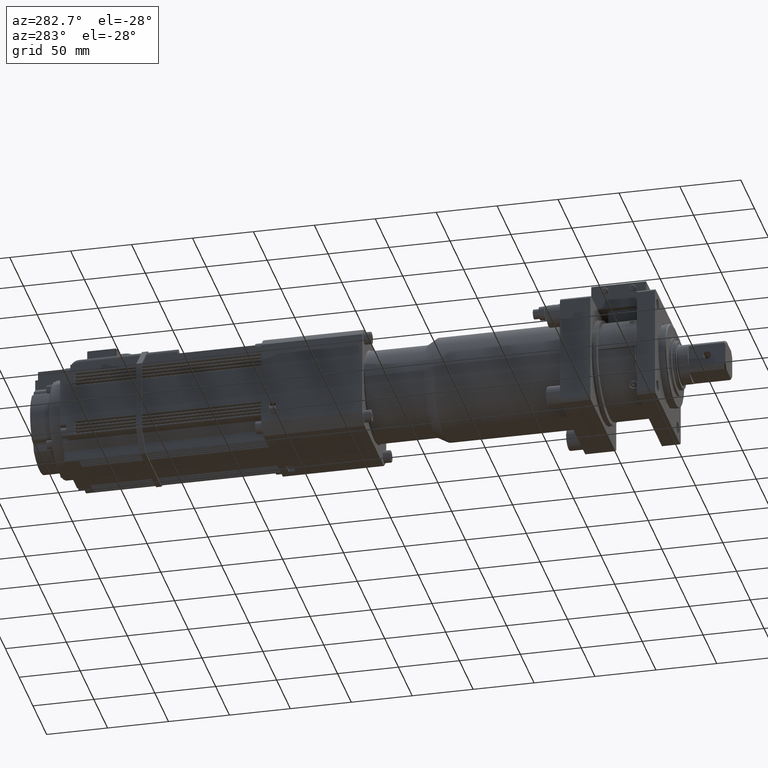
[diagram: clean part render]
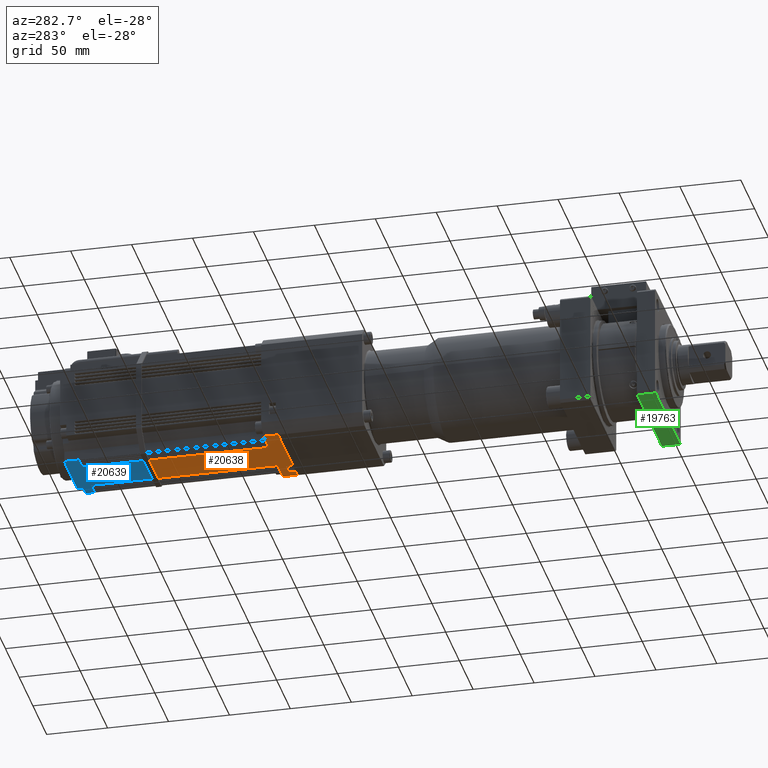
[diagram: same view with three faces highlighted in distinct colors, each labeled with its STEP entity id]
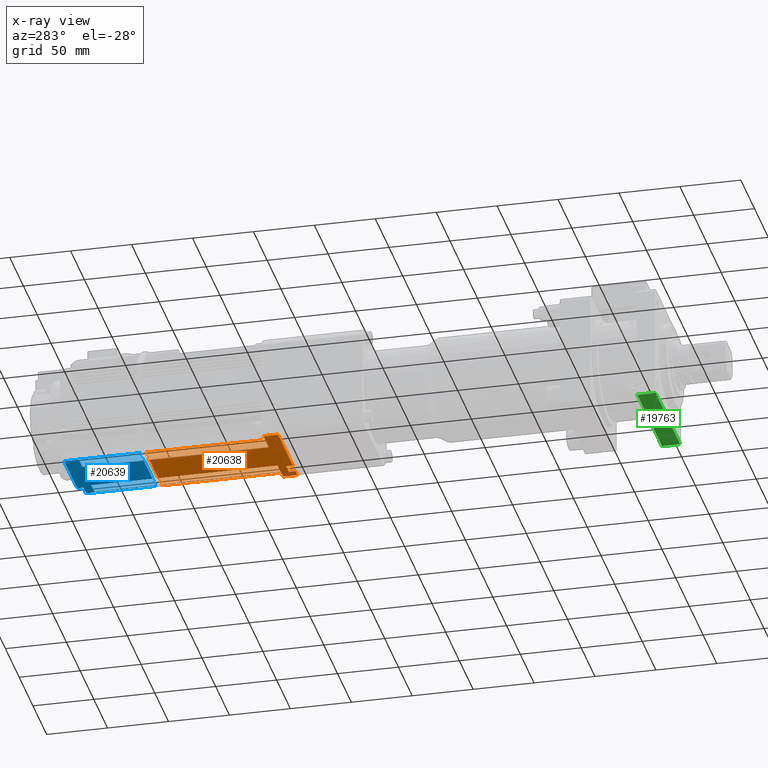
[diagram: x-ray of the same camera — body ghosted, the three highlighted faces saturated]
A machine part, auxiliary view with three faces highlighted in distinct colors.
The next image is the same camera in x-ray (body ghosted, the three faces saturated) — at least one of them is partly hidden behind the body in this view.
Their STEP definitions:

[orange] entity #20638 — the highlighted planar face has unit normal (0, -0, -1).
#1076=PLANE('',#22677);
#2392=FACE_OUTER_BOUND('',#3622,.T.);
#3622=EDGE_LOOP('',(#18630,#18631,#18632,#18633,#18634,#18635,#18636,#18637,
#18638,#18639,#18640,#18641,#18642,#18643,#18644,#18645,#18646,#18647,#18648,
#18649,#18650,#18651,#18652,#18653,#18654,#18655,#18656,#18657,#18658,#18659,
#18660,#18661,#18662,#18663,#18664,#18665,#18666,#18667,#18668,#18669,#18670,
#18671,#18672,#18673));
#4858=LINE('',#30667,#6651);
#4860=LINE('',#30670,#6653);
#5238=LINE('',#33608,#7031);
#5239=LINE('',#33613,#7032);
#5357=LINE('',#33967,#7150);
#5818=LINE('',#35435,#7611);
#5828=LINE('',#35464,#7621);
#5838=LINE('',#35493,#7631);
#5848=LINE('',#35522,#7641);
#5858=LINE('',#35551,#7651);
#5868=LINE('',#35580,#7661);
#5878=LINE('',#35609,#7671);
#5888=LINE('',#35638,#7681);
#5977=LINE('',#35894,#7770);
#5979=LINE('',#35899,#7772);
#5985=LINE('',#35910,#7778);
#5987=LINE('',#35915,#7780);
#5993=LINE('',#35926,#7786);
#5995=LINE('',#35931,#7788);
#6001=LINE('',#35942,#7794);
#6003=LINE('',#35947,#7796);
#6009=LINE('',#35958,#7802);
#6011=LINE('',#35963,#7804);
#6017=LINE('',#35974,#7810);
#6019=LINE('',#35979,#7812);
#6025=LINE('',#35990,#7818);
#6027=LINE('',#35995,#7820);
#6033=LINE('',#36006,#7826);
#6035=LINE('',#36011,#7828);
#6136=LINE('',#36230,#7929);
#6138=LINE('',#36237,#7931);
#6141=LINE('',#36242,#7934);
#6234=LINE('',#36443,#8027);
#6235=LINE('',#36444,#8028);
#6236=LINE('',#36445,#8029);
#6237=LINE('',#36446,#8030);
#6238=LINE('',#36447,#8031);
#6239=LINE('',#36448,#8032);
#6240=LINE('',#36449,#8033);
#6241=LINE('',#36450,#8034);
#6242=LINE('',#36451,#8035);
#6243=LINE('',#36453,#8036);
#6244=LINE('',#36455,#8037);
#6245=LINE('',#36456,#8038);
#6651=VECTOR('',#23940,10.);
#6653=VECTOR('',#23942,10.);
#7031=VECTOR('',#25598,10.);
#7032=VECTOR('',#25603,10.);
#7150=VECTOR('',#25911,10.);
#7611=VECTOR('',#27364,10.);
#7621=VECTOR('',#27388,10.);
#7631=VECTOR('',#27412,10.);
#7641=VECTOR('',#27436,10.);
#7651=VECTOR('',#27460,10.);
#7661=VECTOR('',#27484,10.);
#7671=VECTOR('',#27508,10.);
#7681=VECTOR('',#27532,10.);
#7770=VECTOR('',#27747,10.);
#7772=VECTOR('',#27753,10.);
#7778=VECTOR('',#27763,10.);
#7780=VECTOR('',#27769,10.);
#7786=VECTOR('',#27779,10.);
#7788=VECTOR('',#27785,10.);
#7794=VECTOR('',#27795,10.);
#7796=VECTOR('',#27801,10.);
#7802=VECTOR('',#27811,10.);
#7804=VECTOR('',#27817,10.);
#7810=VECTOR('',#27827,10.);
#7812=VECTOR('',#27833,10.);
#7818=VECTOR('',#27843,10.);
#7820=VECTOR('',#27849,10.);
#7826=VECTOR('',#27859,10.);
#7828=VECTOR('',#27865,10.);
#7929=VECTOR('',#28082,10.);
#7931=VECTOR('',#28090,10.);
#7934=VECTOR('',#28097,10.);
#8027=VECTOR('',#28294,10.);
#8028=VECTOR('',#28295,10.);
#8029=VECTOR('',#28296,10.);
#8030=VECTOR('',#28297,10.);
#8031=VECTOR('',#28298,10.);
#8032=VECTOR('',#28299,10.);
#8033=VECTOR('',#28300,10.);
#8034=VECTOR('',#28301,10.);
#8035=VECTOR('',#28302,10.);
#8036=VECTOR('',#28303,10.);
#8037=VECTOR('',#28304,10.);
#8038=VECTOR('',#28305,10.);
#8610=VERTEX_POINT('',#30650);
#8614=VERTEX_POINT('',#30662);
#8615=VERTEX_POINT('',#30666);
#8616=VERTEX_POINT('',#30668);
#9183=VERTEX_POINT('',#33604);
#9186=VERTEX_POINT('',#33611);
#9315=VERTEX_POINT('',#33964);
#9316=VERTEX_POINT('',#33966);
#9763=VERTEX_POINT('',#35433);
#9764=VERTEX_POINT('',#35434);
#9775=VERTEX_POINT('',#35462);
#9776=VERTEX_POINT('',#35463);
#9787=VERTEX_POINT('',#35491);
#9788=VERTEX_POINT('',#35492);
#9799=VERTEX_POINT('',#35520);
#9800=VERTEX_POINT('',#35521);
#9811=VERTEX_POINT('',#35549);
#9812=VERTEX_POINT('',#35550);
#9823=VERTEX_POINT('',#35578);
#9824=VERTEX_POINT('',#35579);
#9835=VERTEX_POINT('',#35607);
#9836=VERTEX_POINT('',#35608);
#9847=VERTEX_POINT('',#35636);
#9848=VERTEX_POINT('',#35637);
#9952=VERTEX_POINT('',#35892);
#9953=VERTEX_POINT('',#35898);
#9956=VERTEX_POINT('',#35908);
#9957=VERTEX_POINT('',#35914);
#9960=VERTEX_POINT('',#35924);
#9961=VERTEX_POINT('',#35930);
#9964=VERTEX_POINT('',#35940);
#9965=VERTEX_POINT('',#35946);
#9968=VERTEX_POINT('',#35956);
#9969=VERTEX_POINT('',#35962);
#9972=VERTEX_POINT('',#35972);
#9973=VERTEX_POINT('',#35978);
#9976=VERTEX_POINT('',#35988);
#9977=VERTEX_POINT('',#35994);
#9980=VERTEX_POINT('',#36004);
#9981=VERTEX_POINT('',#36010);
#10039=VERTEX_POINT('',#36226);
#10041=VERTEX_POINT('',#36229);
#10100=VERTEX_POINT('',#36452);
#10101=VERTEX_POINT('',#36454);
#10769=EDGE_CURVE('',#8615,#8614,#4858,.T.);
#10771=EDGE_CURVE('',#8610,#8616,#4860,.T.);
#11647=EDGE_CURVE('',#8610,#9183,#5238,.T.);
#11649=EDGE_CURVE('',#8614,#9186,#5239,.T.);
#11820=EDGE_CURVE('',#9316,#9315,#5357,.T.);
#12517=EDGE_CURVE('',#9763,#9764,#5818,.T.);
#12531=EDGE_CURVE('',#9775,#9776,#5828,.T.);
#12545=EDGE_CURVE('',#9787,#9788,#5838,.T.);
#12559=EDGE_CURVE('',#9799,#9800,#5848,.T.);
#12573=EDGE_CURVE('',#9811,#9812,#5858,.T.);
#12587=EDGE_CURVE('',#9823,#9824,#5868,.T.);
#12601=EDGE_CURVE('',#9835,#9836,#5878,.T.);
#12615=EDGE_CURVE('',#9847,#9848,#5888,.T.);
#12740=EDGE_CURVE('',#9952,#9788,#5977,.T.);
#12742=EDGE_CURVE('',#9787,#9953,#5979,.T.);
#12748=EDGE_CURVE('',#9956,#9836,#5985,.T.);
#12750=EDGE_CURVE('',#9835,#9957,#5987,.T.);
#12756=EDGE_CURVE('',#9960,#9824,#5993,.T.);
#12758=EDGE_CURVE('',#9823,#9961,#5995,.T.);
#12764=EDGE_CURVE('',#9964,#9776,#6001,.T.);
#12766=EDGE_CURVE('',#9775,#9965,#6003,.T.);
#12772=EDGE_CURVE('',#9968,#9800,#6009,.T.);
#12774=EDGE_CURVE('',#9799,#9969,#6011,.T.);
#12780=EDGE_CURVE('',#9972,#9848,#6017,.T.);
#12782=EDGE_CURVE('',#9847,#9973,#6019,.T.);
#12788=EDGE_CURVE('',#9976,#9812,#6025,.T.);
#12790=EDGE_CURVE('',#9811,#9977,#6027,.T.);
#12796=EDGE_CURVE('',#9980,#9764,#6033,.T.);
#12798=EDGE_CURVE('',#9763,#9981,#6035,.T.);
#12906=EDGE_CURVE('',#10041,#10039,#6136,.T.);
#12910=EDGE_CURVE('',#10039,#8615,#6138,.T.);
#12913=EDGE_CURVE('',#8616,#10041,#6141,.T.);
#13019=EDGE_CURVE('',#9980,#9977,#6234,.T.);
#13020=EDGE_CURVE('',#9976,#9973,#6235,.T.);
#13021=EDGE_CURVE('',#9972,#9969,#6236,.T.);
#13022=EDGE_CURVE('',#9968,#9965,#6237,.T.);
#13023=EDGE_CURVE('',#9964,#9961,#6238,.T.);
#13024=EDGE_CURVE('',#9960,#9957,#6239,.T.);
#13025=EDGE_CURVE('',#9956,#9953,#6240,.T.);
#13026=EDGE_CURVE('',#9952,#9316,#6241,.T.);
#13027=EDGE_CURVE('',#9315,#9183,#6242,.T.);
#13028=EDGE_CURVE('',#9186,#10100,#6243,.T.);
#13029=EDGE_CURVE('',#10100,#10101,#6244,.T.);
#13030=EDGE_CURVE('',#10101,#9981,#6245,.T.);
#18630=ORIENTED_EDGE('',*,*,#13019,.T.);
#18631=ORIENTED_EDGE('',*,*,#12790,.F.);
#18632=ORIENTED_EDGE('',*,*,#12573,.T.);
#18633=ORIENTED_EDGE('',*,*,#12788,.F.);
#18634=ORIENTED_EDGE('',*,*,#13020,.T.);
#18635=ORIENTED_EDGE('',*,*,#12782,.F.);
#18636=ORIENTED_EDGE('',*,*,#12615,.T.);
#18637=ORIENTED_EDGE('',*,*,#12780,.F.);
#18638=ORIENTED_EDGE('',*,*,#13021,.T.);
#18639=ORIENTED_EDGE('',*,*,#12774,.F.);
#18640=ORIENTED_EDGE('',*,*,#12559,.T.);
#18641=ORIENTED_EDGE('',*,*,#12772,.F.);
#18642=ORIENTED_EDGE('',*,*,#13022,.T.);
#18643=ORIENTED_EDGE('',*,*,#12766,.F.);
#18644=ORIENTED_EDGE('',*,*,#12531,.T.);
#18645=ORIENTED_EDGE('',*,*,#12764,.F.);
#18646=ORIENTED_EDGE('',*,*,#13023,.T.);
#18647=ORIENTED_EDGE('',*,*,#12758,.F.);
#18648=ORIENTED_EDGE('',*,*,#12587,.T.);
#18649=ORIENTED_EDGE('',*,*,#12756,.F.);
#18650=ORIENTED_EDGE('',*,*,#13024,.T.);
#18651=ORIENTED_EDGE('',*,*,#12750,.F.);
#18652=ORIENTED_EDGE('',*,*,#12601,.T.);
#18653=ORIENTED_EDGE('',*,*,#12748,.F.);
#18654=ORIENTED_EDGE('',*,*,#13025,.T.);
#18655=ORIENTED_EDGE('',*,*,#12742,.F.);
#18656=ORIENTED_EDGE('',*,*,#12545,.T.);
#18657=ORIENTED_EDGE('',*,*,#12740,.F.);
#18658=ORIENTED_EDGE('',*,*,#13026,.T.);
#18659=ORIENTED_EDGE('',*,*,#11820,.T.);
#18660=ORIENTED_EDGE('',*,*,#13027,.T.);
#18661=ORIENTED_EDGE('',*,*,#11647,.F.);
#18662=ORIENTED_EDGE('',*,*,#10771,.T.);
#18663=ORIENTED_EDGE('',*,*,#12913,.T.);
#18664=ORIENTED_EDGE('',*,*,#12906,.T.);
#18665=ORIENTED_EDGE('',*,*,#12910,.T.);
#18666=ORIENTED_EDGE('',*,*,#10769,.T.);
#18667=ORIENTED_EDGE('',*,*,#11649,.T.);
#18668=ORIENTED_EDGE('',*,*,#13028,.T.);
#18669=ORIENTED_EDGE('',*,*,#13029,.T.);
#18670=ORIENTED_EDGE('',*,*,#13030,.T.);
#18671=ORIENTED_EDGE('',*,*,#12798,.F.);
#18672=ORIENTED_EDGE('',*,*,#12517,.T.);
#18673=ORIENTED_EDGE('',*,*,#12796,.F.);
#20638=ADVANCED_FACE('',(#2392),#1076,.T.);
#22677=AXIS2_PLACEMENT_3D('',#36442,#28292,#28293);
#23940=DIRECTION('',(-1.,-3.91843420455937E-16,-1.20204062883603E-16));
#23942=DIRECTION('',(-1.,-3.91843420455937E-16,-1.20204062883603E-16));
#25598=DIRECTION('',(-3.96750887945431E-16,1.,-1.17835930746298E-16));
#25603=DIRECTION('',(-3.96750887945431E-16,1.,-1.17835930746298E-16));
#25911=DIRECTION('',(3.96750887945431E-16,-1.,1.17835930746298E-16));
#27364=DIRECTION('',(1.,9.0797037329464E-16,2.55351295663786E-15));
#27388=DIRECTION('',(1.,9.0797037329464E-16,2.55351295663786E-15));
#27412=DIRECTION('',(1.,-5.72326992872233E-16,2.55351295663786E-15));
#27436=DIRECTION('',(1.,9.0797037329464E-16,2.55351295663786E-15));
#27460=DIRECTION('',(1.,9.0797037329464E-16,2.55351295663786E-15));
#27484=DIRECTION('',(1.,9.0797037329464E-16,2.55351295663786E-15));
#27508=DIRECTION('',(1.,9.0797037329464E-16,2.55351295663786E-15));
#27532=DIRECTION('',(1.,9.0797037329464E-16,2.55351295663786E-15));
#27747=DIRECTION('',(8.93457654018494E-16,-1.,1.17835930746299E-16));
#27753=DIRECTION('',(-8.78944934742348E-16,1.,-1.17835930746299E-16));
#27763=DIRECTION('',(9.22483092570786E-16,-1.,1.178359307463E-16));
#27769=DIRECTION('',(-8.93457654018494E-16,1.,-1.17835930746299E-16));
#27779=DIRECTION('',(9.0797037329464E-16,-1.,1.178359307463E-16));
#27785=DIRECTION('',(-8.78944934742348E-16,1.,-1.17835930746299E-16));
#27795=DIRECTION('',(9.0797037329464E-16,-1.,1.178359307463E-16));
#27801=DIRECTION('',(-7.91868619085473E-16,1.,-1.17835930746299E-16));
#27811=DIRECTION('',(9.0797037329464E-16,-1.,1.178359307463E-16));
#27817=DIRECTION('',(-9.0797037329464E-16,1.,-1.178359307463E-16));
#27827=DIRECTION('',(9.0797037329464E-16,-1.,1.178359307463E-16));
#27833=DIRECTION('',(-9.0797037329464E-16,1.,-1.178359307463E-16));
#27843=DIRECTION('',(9.0797037329464E-16,-1.,1.178359307463E-16));
#27849=DIRECTION('',(-9.0797037329464E-16,1.,-1.178359307463E-16));
#27859=DIRECTION('',(9.0797037329464E-16,-1.,1.178359307463E-16));
#27865=DIRECTION('',(-7.91868619085473E-16,1.,-1.17835930746299E-16));
#28082=DIRECTION('',(-1.,-3.96750887945432E-16,-2.55351295663786E-15));
#28090=DIRECTION('',(3.96750887945431E-16,-1.,1.17835930746298E-16));
#28097=DIRECTION('',(-3.96750887945431E-16,1.,-1.17835930746298E-16));
#28292=DIRECTION('center_axis',(2.55351295663786E-15,-1.17835930746297E-16,
-1.));
#28293=DIRECTION('ref_axis',(-1.,-3.96750887945432E-16,-2.55351295663786E-15));
#28294=DIRECTION('',(1.,3.96750887945432E-16,2.55351295663786E-15));
#28295=DIRECTION('',(1.,3.96750887945432E-16,2.55351295663786E-15));
#28296=DIRECTION('',(1.,3.96750887945432E-16,2.55351295663786E-15));
#28297=DIRECTION('',(1.,3.96750887945432E-16,2.55351295663786E-15));
#28298=DIRECTION('',(1.,3.96750887945432E-16,2.55351295663786E-15));
#28299=DIRECTION('',(1.,3.96750887945432E-16,2.55351295663786E-15));
#28300=DIRECTION('',(1.,3.96750887945432E-16,2.55351295663786E-15));
#28301=DIRECTION('',(1.,3.96750887945432E-16,2.55351295663786E-15));
#28302=DIRECTION('',(1.,3.96750887945432E-16,2.55351295663786E-15));
#28303=DIRECTION('',(1.,3.96750887945432E-16,2.55351295663786E-15));
#28304=DIRECTION('',(-3.96750887945431E-16,1.,-1.17835930746298E-16));
#28305=DIRECTION('',(1.,3.96750887945432E-16,2.55351295663786E-15));
#30650=CARTESIAN_POINT('',(35.2668399491646,312.,-43.5));
#30662=CARTESIAN_POINT('',(-35.2668399491648,312.,-43.5));
#30666=CARTESIAN_POINT('',(18.5000000000001,312.,-43.5));
#30667=CARTESIAN_POINT('',(21.7499999999999,312.,-43.5));
#30668=CARTESIAN_POINT('',(28.5000000000001,312.,-43.5));
#30670=CARTESIAN_POINT('',(21.7499999999999,312.,-43.5));
#33604=CARTESIAN_POINT('',(35.2668399491648,324.,-43.4999999999999));
#33608=CARTESIAN_POINT('',(35.2668399491648,312.,-43.4999999999999));
#33611=CARTESIAN_POINT('',(-35.2668399491646,324.,-43.5000000000001));
#33613=CARTESIAN_POINT('',(-35.2668399491646,312.,-43.5000000000001));
#33964=CARTESIAN_POINT('',(28.5000000000001,324.,-43.5));
#33966=CARTESIAN_POINT('',(28.5000000000001,422.,-43.5));
#33967=CARTESIAN_POINT('',(28.5000000000001,400.5,-43.5));
#35433=CARTESIAN_POINT('',(-27.5999999999999,324.,-43.5000000000001));
#35434=CARTESIAN_POINT('',(-24.8999999999999,324.,-43.5000000000001));
#35435=CARTESIAN_POINT('',(4.13341997458246,324.,-43.5));
#35462=CARTESIAN_POINT('',(15.9000000000001,324.,-43.5));
#35463=CARTESIAN_POINT('',(18.6000000000001,324.,-43.5));
#35464=CARTESIAN_POINT('',(25.8834199745825,324.,-43.5));
#35491=CARTESIAN_POINT('',(24.9000000000001,324.,-43.5));
#35492=CARTESIAN_POINT('',(27.6000000000001,324.,-43.5));
#35493=CARTESIAN_POINT('',(30.3834199745825,324.,-43.5));
#35520=CARTESIAN_POINT('',(-18.5999999999999,324.,-43.5000000000001));
#35521=CARTESIAN_POINT('',(-15.8999999999999,324.,-43.5000000000001));
#35522=CARTESIAN_POINT('',(8.63341997458245,324.,-43.5));
#35549=CARTESIAN_POINT('',(-24.5999999999999,324.,-43.5000000000001));
#35550=CARTESIAN_POINT('',(-21.8999999999999,324.,-43.5000000000001));
#35551=CARTESIAN_POINT('',(5.63341997458245,324.,-43.5));
#35578=CARTESIAN_POINT('',(18.9000000000001,324.,-43.5));
#35579=CARTESIAN_POINT('',(21.6000000000001,324.,-43.5));
#35580=CARTESIAN_POINT('',(27.3834199745824,324.,-43.5));
#35607=CARTESIAN_POINT('',(21.9000000000001,324.,-43.5));
#35608=CARTESIAN_POINT('',(24.6000000000001,324.,-43.5));
#35609=CARTESIAN_POINT('',(28.8834199745825,324.,-43.5));
#35636=CARTESIAN_POINT('',(-21.5999999999999,324.,-43.5000000000001));
#35637=CARTESIAN_POINT('',(-18.8999999999998,324.,-43.5000000000001));
#35638=CARTESIAN_POINT('',(7.13341997458248,324.,-43.5));
#35892=CARTESIAN_POINT('',(27.6,422.,-43.5));
#35894=CARTESIAN_POINT('',(27.6000000000001,318.,-43.5));
#35898=CARTESIAN_POINT('',(24.9,422.,-43.5));
#35899=CARTESIAN_POINT('',(24.9000000000001,394.5,-43.5));
#35908=CARTESIAN_POINT('',(24.6,422.,-43.5));
#35910=CARTESIAN_POINT('',(24.6000000000001,318.,-43.5));
#35914=CARTESIAN_POINT('',(21.9,422.,-43.5));
#35915=CARTESIAN_POINT('',(21.9000000000001,394.5,-43.5));
#35924=CARTESIAN_POINT('',(21.6,422.,-43.5));
#35926=CARTESIAN_POINT('',(21.6000000000001,318.,-43.5));
#35930=CARTESIAN_POINT('',(18.9,422.,-43.5));
#35931=CARTESIAN_POINT('',(18.9,394.5,-43.5));
#35940=CARTESIAN_POINT('',(18.6,422.,-43.5));
#35942=CARTESIAN_POINT('',(18.6000000000001,318.,-43.5));
#35946=CARTESIAN_POINT('',(15.9,422.,-43.5));
#35947=CARTESIAN_POINT('',(15.9000000000001,394.5,-43.5));
#35956=CARTESIAN_POINT('',(-15.9,422.,-43.5000000000001));
#35958=CARTESIAN_POINT('',(-15.8999999999999,318.,-43.5000000000001));
#35962=CARTESIAN_POINT('',(-18.6,422.,-43.5000000000001));
#35963=CARTESIAN_POINT('',(-18.6,394.5,-43.5000000000001));
#35972=CARTESIAN_POINT('',(-18.8999999999999,422.,-43.5000000000001));
#35974=CARTESIAN_POINT('',(-18.8999999999998,318.,-43.5000000000001));
#35978=CARTESIAN_POINT('',(-21.5999999999999,422.,-43.5000000000001));
#35979=CARTESIAN_POINT('',(-21.5999999999999,394.5,-43.5000000000001));
#35988=CARTESIAN_POINT('',(-21.9,422.,-43.5000000000001));
#35990=CARTESIAN_POINT('',(-21.8999999999999,318.,-43.5000000000001));
#35994=CARTESIAN_POINT('',(-24.6,422.,-43.5000000000001));
#35995=CARTESIAN_POINT('',(-24.6,394.5,-43.5000000000001));
#36004=CARTESIAN_POINT('',(-24.9,422.,-43.5000000000001));
#36006=CARTESIAN_POINT('',(-24.8999999999999,318.,-43.5000000000001));
#36010=CARTESIAN_POINT('',(-27.6,422.,-43.5000000000001));
#36011=CARTESIAN_POINT('',(-27.6,394.5,-43.5000000000001));
#36226=CARTESIAN_POINT('',(18.5000000000001,317.5,-43.5));
#36229=CARTESIAN_POINT('',(28.5000000000001,317.5,-43.5));
#36230=CARTESIAN_POINT('',(29.3834199745825,317.5,-43.5));
#36237=CARTESIAN_POINT('',(18.5000000000001,312.,-43.5));
#36242=CARTESIAN_POINT('',(28.5000000000001,312.,-43.5));
#36442=CARTESIAN_POINT('Origin',(35.2668399491648,312.,-43.4999999999999));
#36443=CARTESIAN_POINT('',(17.6334199745824,422.,-43.5));
#36444=CARTESIAN_POINT('',(17.6334199745824,422.,-43.5));
#36445=CARTESIAN_POINT('',(17.6334199745824,422.,-43.5));
#36446=CARTESIAN_POINT('',(17.6334199745824,422.,-43.5));
#36447=CARTESIAN_POINT('',(17.6334199745824,422.,-43.5));
#36448=CARTESIAN_POINT('',(17.6334199745824,422.,-43.5));
#36449=CARTESIAN_POINT('',(17.6334199745824,422.,-43.5));
#36450=CARTESIAN_POINT('',(17.6334199745824,422.,-43.5));
#36451=CARTESIAN_POINT('',(35.6334199745825,324.,-43.4999999999999));
#36452=CARTESIAN_POINT('',(-28.4999999999999,324.,-43.5000000000001));
#36453=CARTESIAN_POINT('',(-0.366580025417542,324.,-43.5));
#36454=CARTESIAN_POINT('',(-28.4999999999999,422.,-43.5000000000001));
#36455=CARTESIAN_POINT('',(-28.4999999999999,400.5,-43.5000000000001));
#36456=CARTESIAN_POINT('',(17.6334199745824,422.,-43.5));

[blue] entity #20639 — the highlighted planar face has unit normal (0, -0, -1).
#1077=PLANE('',#22678);
#2393=FACE_OUTER_BOUND('',#3623,.T.);
#3623=EDGE_LOOP('',(#18674,#18675,#18676,#18677,#18678,#18679,#18680,#18681,
#18682,#18683,#18684,#18685,#18686,#18687,#18688,#18689,#18690,#18691,#18692,
#18693,#18694,#18695,#18696,#18697,#18698,#18699,#18700,#18701,#18702,#18703,
#18704,#18705,#18706,#18707,#18708,#18709,#18710,#18711));
#5330=LINE('',#33893,#7123);
#5354=LINE('',#33962,#7147);
#5378=LINE('',#34016,#7171);
#5384=LINE('',#34030,#7177);
#5821=LINE('',#35445,#7614);
#5831=LINE('',#35474,#7624);
#5841=LINE('',#35503,#7634);
#5851=LINE('',#35532,#7644);
#5861=LINE('',#35561,#7654);
#5871=LINE('',#35590,#7664);
#5881=LINE('',#35619,#7674);
#5891=LINE('',#35648,#7684);
#5975=LINE('',#35891,#7768);
#5981=LINE('',#35902,#7774);
#5983=LINE('',#35907,#7776);
#5989=LINE('',#35918,#7782);
#5991=LINE('',#35923,#7784);
#5997=LINE('',#35934,#7790);
#5999=LINE('',#35939,#7792);
#6005=LINE('',#35950,#7798);
#6007=LINE('',#35955,#7800);
#6013=LINE('',#35966,#7806);
#6015=LINE('',#35971,#7808);
#6021=LINE('',#35982,#7814);
#6023=LINE('',#35987,#7816);
#6029=LINE('',#35998,#7822);
#6031=LINE('',#36003,#7824);
#6037=LINE('',#36014,#7830);
#6246=LINE('',#36458,#8039);
#6247=LINE('',#36460,#8040);
#6248=LINE('',#36461,#8041);
#6249=LINE('',#36462,#8042);
#6250=LINE('',#36463,#8043);
#6251=LINE('',#36464,#8044);
#6252=LINE('',#36465,#8045);
#6253=LINE('',#36466,#8046);
#6254=LINE('',#36467,#8047);
#6255=LINE('',#36468,#8048);
#7123=VECTOR('',#25848,10.);
#7147=VECTOR('',#25908,10.);
#7171=VECTOR('',#25956,10.);
#7177=VECTOR('',#25972,10.);
#7614=VECTOR('',#27373,10.);
#7624=VECTOR('',#27397,10.);
#7634=VECTOR('',#27421,10.);
#7644=VECTOR('',#27445,10.);
#7654=VECTOR('',#27469,10.);
#7664=VECTOR('',#27493,10.);
#7674=VECTOR('',#27517,10.);
#7684=VECTOR('',#27541,10.);
#7768=VECTOR('',#27745,10.);
#7774=VECTOR('',#27755,10.);
#7776=VECTOR('',#27761,10.);
#7782=VECTOR('',#27771,10.);
#7784=VECTOR('',#27777,10.);
#7790=VECTOR('',#27787,10.);
#7792=VECTOR('',#27793,10.);
#7798=VECTOR('',#27803,10.);
#7800=VECTOR('',#27809,10.);
#7806=VECTOR('',#27819,10.);
#7808=VECTOR('',#27825,10.);
#7814=VECTOR('',#27835,10.);
#7816=VECTOR('',#27841,10.);
#7822=VECTOR('',#27851,10.);
#7824=VECTOR('',#27857,10.);
#7830=VECTOR('',#27867,10.);
#8039=VECTOR('',#28308,10.);
#8040=VECTOR('',#28309,10.);
#8041=VECTOR('',#28310,10.);
#8042=VECTOR('',#28311,10.);
#8043=VECTOR('',#28312,10.);
#8044=VECTOR('',#28313,10.);
#8045=VECTOR('',#28314,10.);
#8046=VECTOR('',#28315,10.);
#8047=VECTOR('',#28316,10.);
#8048=VECTOR('',#28317,10.);
#9286=VERTEX_POINT('',#33890);
#9287=VERTEX_POINT('',#33892);
#9313=VERTEX_POINT('',#33959);
#9314=VERTEX_POINT('',#33961);
#9332=VERTEX_POINT('',#34015);
#9767=VERTEX_POINT('',#35443);
#9768=VERTEX_POINT('',#35444);
#9779=VERTEX_POINT('',#35472);
#9780=VERTEX_POINT('',#35473);
#9791=VERTEX_POINT('',#35501);
#9792=VERTEX_POINT('',#35502);
#9803=VERTEX_POINT('',#35530);
#9804=VERTEX_POINT('',#35531);
#9815=VERTEX_POINT('',#35559);
#9816=VERTEX_POINT('',#35560);
#9827=VERTEX_POINT('',#35588);
#9828=VERTEX_POINT('',#35589);
#9839=VERTEX_POINT('',#35617);
#9840=VERTEX_POINT('',#35618);
#9851=VERTEX_POINT('',#35646);
#9852=VERTEX_POINT('',#35647);
#9951=VERTEX_POINT('',#35890);
#9954=VERTEX_POINT('',#35900);
#9955=VERTEX_POINT('',#35906);
#9958=VERTEX_POINT('',#35916);
#9959=VERTEX_POINT('',#35922);
#9962=VERTEX_POINT('',#35932);
#9963=VERTEX_POINT('',#35938);
#9966=VERTEX_POINT('',#35948);
#9967=VERTEX_POINT('',#35954);
#9970=VERTEX_POINT('',#35964);
#9971=VERTEX_POINT('',#35970);
#9974=VERTEX_POINT('',#35980);
#9975=VERTEX_POINT('',#35986);
#9978=VERTEX_POINT('',#35996);
#9979=VERTEX_POINT('',#36002);
#9982=VERTEX_POINT('',#36012);
#10102=VERTEX_POINT('',#36459);
#11781=EDGE_CURVE('',#9286,#9287,#5330,.T.);
#11817=EDGE_CURVE('',#9314,#9313,#5354,.T.);
#11846=EDGE_CURVE('',#9332,#9314,#5378,.T.);
#11854=EDGE_CURVE('',#9286,#9332,#5384,.T.);
#12522=EDGE_CURVE('',#9767,#9768,#5821,.T.);
#12536=EDGE_CURVE('',#9779,#9780,#5831,.T.);
#12550=EDGE_CURVE('',#9791,#9792,#5841,.T.);
#12564=EDGE_CURVE('',#9803,#9804,#5851,.T.);
#12578=EDGE_CURVE('',#9815,#9816,#5861,.T.);
#12592=EDGE_CURVE('',#9827,#9828,#5871,.T.);
#12606=EDGE_CURVE('',#9839,#9840,#5881,.T.);
#12620=EDGE_CURVE('',#9851,#9852,#5891,.T.);
#12738=EDGE_CURVE('',#9791,#9951,#5975,.T.);
#12744=EDGE_CURVE('',#9954,#9792,#5981,.T.);
#12746=EDGE_CURVE('',#9839,#9955,#5983,.T.);
#12752=EDGE_CURVE('',#9958,#9840,#5989,.T.);
#12754=EDGE_CURVE('',#9827,#9959,#5991,.T.);
#12760=EDGE_CURVE('',#9962,#9828,#5997,.T.);
#12762=EDGE_CURVE('',#9779,#9963,#5999,.T.);
#12768=EDGE_CURVE('',#9966,#9780,#6005,.T.);
#12770=EDGE_CURVE('',#9803,#9967,#6007,.T.);
#12776=EDGE_CURVE('',#9970,#9804,#6013,.T.);
#12778=EDGE_CURVE('',#9851,#9971,#6015,.T.);
#12784=EDGE_CURVE('',#9974,#9852,#6021,.T.);
#12786=EDGE_CURVE('',#9815,#9975,#6023,.T.);
#12792=EDGE_CURVE('',#9978,#9816,#6029,.T.);
#12794=EDGE_CURVE('',#9767,#9979,#6031,.T.);
#12800=EDGE_CURVE('',#9982,#9768,#6037,.T.);
#13031=EDGE_CURVE('',#9978,#9979,#6246,.T.);
#13032=EDGE_CURVE('',#9982,#10102,#6247,.T.);
#13033=EDGE_CURVE('',#10102,#9287,#6248,.T.);
#13034=EDGE_CURVE('',#9313,#9951,#6249,.T.);
#13035=EDGE_CURVE('',#9954,#9955,#6250,.T.);
#13036=EDGE_CURVE('',#9958,#9959,#6251,.T.);
#13037=EDGE_CURVE('',#9962,#9963,#6252,.T.);
#13038=EDGE_CURVE('',#9966,#9967,#6253,.T.);
#13039=EDGE_CURVE('',#9970,#9971,#6254,.T.);
#13040=EDGE_CURVE('',#9974,#9975,#6255,.T.);
#18674=ORIENTED_EDGE('',*,*,#13031,.T.);
#18675=ORIENTED_EDGE('',*,*,#12794,.F.);
#18676=ORIENTED_EDGE('',*,*,#12522,.T.);
#18677=ORIENTED_EDGE('',*,*,#12800,.F.);
#18678=ORIENTED_EDGE('',*,*,#13032,.T.);
#18679=ORIENTED_EDGE('',*,*,#13033,.T.);
#18680=ORIENTED_EDGE('',*,*,#11781,.F.);
#18681=ORIENTED_EDGE('',*,*,#11854,.T.);
#18682=ORIENTED_EDGE('',*,*,#11846,.T.);
#18683=ORIENTED_EDGE('',*,*,#11817,.T.);
#18684=ORIENTED_EDGE('',*,*,#13034,.T.);
#18685=ORIENTED_EDGE('',*,*,#12738,.F.);
#18686=ORIENTED_EDGE('',*,*,#12550,.T.);
#18687=ORIENTED_EDGE('',*,*,#12744,.F.);
#18688=ORIENTED_EDGE('',*,*,#13035,.T.);
#18689=ORIENTED_EDGE('',*,*,#12746,.F.);
#18690=ORIENTED_EDGE('',*,*,#12606,.T.);
#18691=ORIENTED_EDGE('',*,*,#12752,.F.);
#18692=ORIENTED_EDGE('',*,*,#13036,.T.);
#18693=ORIENTED_EDGE('',*,*,#12754,.F.);
#18694=ORIENTED_EDGE('',*,*,#12592,.T.);
#18695=ORIENTED_EDGE('',*,*,#12760,.F.);
#18696=ORIENTED_EDGE('',*,*,#13037,.T.);
#18697=ORIENTED_EDGE('',*,*,#12762,.F.);
#18698=ORIENTED_EDGE('',*,*,#12536,.T.);
#18699=ORIENTED_EDGE('',*,*,#12768,.F.);
#18700=ORIENTED_EDGE('',*,*,#13038,.T.);
#18701=ORIENTED_EDGE('',*,*,#12770,.F.);
#18702=ORIENTED_EDGE('',*,*,#12564,.T.);
#18703=ORIENTED_EDGE('',*,*,#12776,.F.);
#18704=ORIENTED_EDGE('',*,*,#13039,.T.);
#18705=ORIENTED_EDGE('',*,*,#12778,.F.);
#18706=ORIENTED_EDGE('',*,*,#12620,.T.);
#18707=ORIENTED_EDGE('',*,*,#12784,.F.);
#18708=ORIENTED_EDGE('',*,*,#13040,.T.);
#18709=ORIENTED_EDGE('',*,*,#12786,.F.);
#18710=ORIENTED_EDGE('',*,*,#12578,.T.);
#18711=ORIENTED_EDGE('',*,*,#12792,.F.);
#20639=ADVANCED_FACE('',(#2393),#1077,.T.);
#22678=AXIS2_PLACEMENT_3D('',#36457,#28306,#28307);
#25848=DIRECTION('',(-1.,-3.96750887945432E-16,-2.55351295663786E-15));
#25908=DIRECTION('',(3.96750887945431E-16,-1.,1.17835930746298E-16));
#25956=DIRECTION('',(1.,3.96750887945432E-16,2.55351295663786E-15));
#25972=DIRECTION('',(3.96750887945431E-16,-1.,1.17835930746298E-16));
#27373=DIRECTION('',(-1.,-9.0797037329464E-16,-2.55351295663786E-15));
#27397=DIRECTION('',(-1.,-9.0797037329464E-16,-2.55351295663786E-15));
#27421=DIRECTION('',(-1.,-9.0797037329464E-16,-2.55351295663786E-15));
#27445=DIRECTION('',(-1.,-9.0797037329464E-16,-2.55351295663786E-15));
#27469=DIRECTION('',(-1.,-9.0797037329464E-16,-2.55351295663786E-15));
#27493=DIRECTION('',(-1.,-9.0797037329464E-16,-2.55351295663786E-15));
#27517=DIRECTION('',(-1.,-9.0797037329464E-16,-2.55351295663786E-15));
#27541=DIRECTION('',(-1.,-9.0797037329464E-16,-2.55351295663786E-15));
#27745=DIRECTION('',(8.93457654018494E-16,-1.,1.17835930746299E-16));
#27755=DIRECTION('',(-8.78944934742348E-16,1.,-1.17835930746299E-16));
#27761=DIRECTION('',(9.22483092570786E-16,-1.,1.178359307463E-16));
#27771=DIRECTION('',(-8.93457654018494E-16,1.,-1.17835930746299E-16));
#27777=DIRECTION('',(9.0797037329464E-16,-1.,1.178359307463E-16));
#27787=DIRECTION('',(-8.78944934742348E-16,1.,-1.17835930746299E-16));
#27793=DIRECTION('',(9.0797037329464E-16,-1.,1.178359307463E-16));
#27803=DIRECTION('',(-7.91868619085473E-16,1.,-1.17835930746299E-16));
#27809=DIRECTION('',(9.0797037329464E-16,-1.,1.178359307463E-16));
#27819=DIRECTION('',(-9.0797037329464E-16,1.,-1.178359307463E-16));
#27825=DIRECTION('',(9.0797037329464E-16,-1.,1.178359307463E-16));
#27835=DIRECTION('',(-9.0797037329464E-16,1.,-1.178359307463E-16));
#27841=DIRECTION('',(9.0797037329464E-16,-1.,1.178359307463E-16));
#27851=DIRECTION('',(-9.0797037329464E-16,1.,-1.178359307463E-16));
#27857=DIRECTION('',(9.0797037329464E-16,-1.,1.178359307463E-16));
#27867=DIRECTION('',(-7.91868619085473E-16,1.,-1.17835930746299E-16));
#28306=DIRECTION('center_axis',(2.55351295663786E-15,-1.17835930746297E-16,
-1.));
#28307=DIRECTION('ref_axis',(-1.,-3.96750887945432E-16,-2.55351295663786E-15));
#28308=DIRECTION('',(-1.,-3.96750887945432E-16,-2.55351295663786E-15));
#28309=DIRECTION('',(-1.,-3.96750887945432E-16,-2.55351295663786E-15));
#28310=DIRECTION('',(-3.96750887945431E-16,1.,-1.17835930746298E-16));
#28311=DIRECTION('',(-1.,-3.96750887945432E-16,-2.55351295663786E-15));
#28312=DIRECTION('',(-1.,-3.96750887945432E-16,-2.55351295663786E-15));
#28313=DIRECTION('',(-1.,-3.96750887945432E-16,-2.55351295663786E-15));
#28314=DIRECTION('',(-1.,-3.96750887945432E-16,-2.55351295663786E-15));
#28315=DIRECTION('',(-1.,-3.96750887945432E-16,-2.55351295663786E-15));
#28316=DIRECTION('',(-1.,-3.96750887945432E-16,-2.55351295663786E-15));
#28317=DIRECTION('',(-1.,-3.96750887945432E-16,-2.55351295663786E-15));
#33890=CARTESIAN_POINT('',(18.5,489.,-43.5));
#33892=CARTESIAN_POINT('',(-28.5,489.,-43.5000000000001));
#33893=CARTESIAN_POINT('',(35.2668399491647,489.,-43.5));
#33959=CARTESIAN_POINT('',(28.5000000000001,426.5,-43.5));
#33961=CARTESIAN_POINT('',(28.5,484.,-43.5));
#33962=CARTESIAN_POINT('',(28.5000000000001,400.5,-43.5));
#34015=CARTESIAN_POINT('',(18.5,484.,-43.5));
#34016=CARTESIAN_POINT('',(29.7698695683692,484.,-43.5));
#34030=CARTESIAN_POINT('',(18.5000000000001,400.5,-43.5));
#35443=CARTESIAN_POINT('',(-24.9,477.,-43.5000000000001));
#35444=CARTESIAN_POINT('',(-27.6,477.,-43.5000000000001));
#35445=CARTESIAN_POINT('',(4.88341997458231,477.,-43.5));
#35472=CARTESIAN_POINT('',(18.6,477.,-43.5));
#35473=CARTESIAN_POINT('',(15.9,477.,-43.5));
#35474=CARTESIAN_POINT('',(26.6334199745823,477.,-43.5));
#35501=CARTESIAN_POINT('',(27.6,477.,-43.5));
#35502=CARTESIAN_POINT('',(24.9,477.,-43.5));
#35503=CARTESIAN_POINT('',(31.1334199745823,477.,-43.5));
#35530=CARTESIAN_POINT('',(-15.9000000000001,477.,-43.5000000000001));
#35531=CARTESIAN_POINT('',(-18.6000000000001,477.,-43.5000000000001));
#35532=CARTESIAN_POINT('',(9.38341997458231,477.,-43.5));
#35559=CARTESIAN_POINT('',(-21.9,477.,-43.5000000000001));
#35560=CARTESIAN_POINT('',(-24.6,477.,-43.5000000000001));
#35561=CARTESIAN_POINT('',(6.38341997458231,477.,-43.5));
#35588=CARTESIAN_POINT('',(21.5999999999999,477.,-43.5));
#35589=CARTESIAN_POINT('',(18.8999999999999,477.,-43.5));
#35590=CARTESIAN_POINT('',(28.1334199745823,477.,-43.5));
#35617=CARTESIAN_POINT('',(24.6,477.,-43.5));
#35618=CARTESIAN_POINT('',(21.9,477.,-43.5));
#35619=CARTESIAN_POINT('',(29.6334199745823,477.,-43.5));
#35646=CARTESIAN_POINT('',(-18.9,477.,-43.5000000000001));
#35647=CARTESIAN_POINT('',(-21.6,477.,-43.5000000000001));
#35648=CARTESIAN_POINT('',(7.88341997458234,477.,-43.5));
#35890=CARTESIAN_POINT('',(27.6,426.5,-43.5));
#35891=CARTESIAN_POINT('',(27.6000000000001,318.,-43.5));
#35900=CARTESIAN_POINT('',(24.9,426.5,-43.5));
#35902=CARTESIAN_POINT('',(24.9000000000001,394.5,-43.5));
#35906=CARTESIAN_POINT('',(24.6,426.5,-43.5));
#35907=CARTESIAN_POINT('',(24.6000000000001,318.,-43.5));
#35916=CARTESIAN_POINT('',(21.9,426.5,-43.5));
#35918=CARTESIAN_POINT('',(21.9000000000001,394.5,-43.5));
#35922=CARTESIAN_POINT('',(21.6,426.5,-43.5));
#35923=CARTESIAN_POINT('',(21.6000000000001,318.,-43.5));
#35932=CARTESIAN_POINT('',(18.9,426.5,-43.5));
#35934=CARTESIAN_POINT('',(18.9,394.5,-43.5));
#35938=CARTESIAN_POINT('',(18.6,426.5,-43.5));
#35939=CARTESIAN_POINT('',(18.6000000000001,318.,-43.5));
#35948=CARTESIAN_POINT('',(15.9,426.5,-43.5));
#35950=CARTESIAN_POINT('',(15.9000000000001,394.5,-43.5));
#35954=CARTESIAN_POINT('',(-15.9,426.5,-43.5000000000001));
#35955=CARTESIAN_POINT('',(-15.8999999999999,318.,-43.5000000000001));
#35964=CARTESIAN_POINT('',(-18.6,426.5,-43.5000000000001));
#35966=CARTESIAN_POINT('',(-18.6,394.5,-43.5000000000001));
#35970=CARTESIAN_POINT('',(-18.8999999999999,426.5,-43.5000000000001));
#35971=CARTESIAN_POINT('',(-18.8999999999998,318.,-43.5000000000001));
#35980=CARTESIAN_POINT('',(-21.5999999999999,426.5,-43.5000000000001));
#35982=CARTESIAN_POINT('',(-21.5999999999999,394.5,-43.5000000000001));
#35986=CARTESIAN_POINT('',(-21.9,426.5,-43.5000000000001));
#35987=CARTESIAN_POINT('',(-21.8999999999999,318.,-43.5000000000001));
#35996=CARTESIAN_POINT('',(-24.6,426.5,-43.5000000000001));
#35998=CARTESIAN_POINT('',(-24.6,394.5,-43.5000000000001));
#36002=CARTESIAN_POINT('',(-24.9,426.5,-43.5000000000001));
#36003=CARTESIAN_POINT('',(-24.8999999999999,318.,-43.5000000000001));
#36012=CARTESIAN_POINT('',(-27.6,426.5,-43.5000000000001));
#36014=CARTESIAN_POINT('',(-27.6,394.5,-43.5000000000001));
#36457=CARTESIAN_POINT('Origin',(35.2668399491648,312.,-43.4999999999999));
#36458=CARTESIAN_POINT('',(17.6334199745824,426.5,-43.5));
#36459=CARTESIAN_POINT('',(-28.4999999999999,426.5,-43.5000000000001));
#36460=CARTESIAN_POINT('',(17.6334199745824,426.5,-43.5));
#36461=CARTESIAN_POINT('',(-28.4999999999999,400.5,-43.5000000000001));
#36462=CARTESIAN_POINT('',(17.6334199745824,426.5,-43.5));
#36463=CARTESIAN_POINT('',(17.6334199745824,426.5,-43.5));
#36464=CARTESIAN_POINT('',(17.6334199745824,426.5,-43.5));
#36465=CARTESIAN_POINT('',(17.6334199745824,426.5,-43.5));
#36466=CARTESIAN_POINT('',(17.6334199745824,426.5,-43.5));
#36467=CARTESIAN_POINT('',(17.6334199745824,426.5,-43.5));
#36468=CARTESIAN_POINT('',(17.6334199745824,426.5,-43.5));

[green] entity #19763 — the highlighted planar face has unit normal (0, 0, 1).
#558=PLANE('',#21071);
#1517=FACE_OUTER_BOUND('',#2651,.T.);
#2651=EDGE_LOOP('',(#14062,#14063,#14064,#14065));
#4779=LINE('',#30346,#6572);
#4789=LINE('',#30391,#6582);
#4792=LINE('',#30403,#6585);
#4793=LINE('',#30404,#6586);
#6572=VECTOR('',#23587,10.);
#6582=VECTOR('',#23627,10.);
#6585=VECTOR('',#23640,10.);
#6586=VECTOR('',#23641,10.);
#8509=VERTEX_POINT('',#30343);
#8510=VERTEX_POINT('',#30345);
#8529=VERTEX_POINT('',#30388);
#8530=VERTEX_POINT('',#30390);
#10610=EDGE_CURVE('',#8509,#8510,#4779,.T.);
#10630=EDGE_CURVE('',#8529,#8530,#4789,.T.);
#10636=EDGE_CURVE('',#8510,#8529,#4792,.T.);
#10637=EDGE_CURVE('',#8530,#8509,#4793,.T.);
#14062=ORIENTED_EDGE('',*,*,#10636,.F.);
#14063=ORIENTED_EDGE('',*,*,#10610,.F.);
#14064=ORIENTED_EDGE('',*,*,#10637,.F.);
#14065=ORIENTED_EDGE('',*,*,#10630,.F.);
#19763=ADVANCED_FACE('',(#1517),#558,.F.);
#21071=AXIS2_PLACEMENT_3D('',#30402,#23638,#23639);
#23587=DIRECTION('',(-3.91843420455937E-16,1.,0.));
#23627=DIRECTION('',(3.91843420455937E-16,-1.,0.));
#23638=DIRECTION('center_axis',(0.,0.,1.));
#23639=DIRECTION('ref_axis',(1.,3.91843420455937E-16,0.));
#23640=DIRECTION('',(-1.,-3.91843420455937E-16,0.));
#23641=DIRECTION('',(1.,3.91843420455937E-16,0.));
#30343=CARTESIAN_POINT('',(44.8998886412873,3.52919871005526E-14,-47.));
#30345=CARTESIAN_POINT('',(44.8998886412873,15.,-47.));
#30346=CARTESIAN_POINT('',(44.8998886412873,7.50000000000003,-47.));
#30388=CARTESIAN_POINT('',(-44.8998886412873,15.,-47.));
#30390=CARTESIAN_POINT('',(-44.8998886412873,1.04535213967131E-16,-47.));
#30391=CARTESIAN_POINT('',(-44.8998886412873,7.5,-47.));
#30402=CARTESIAN_POINT('Origin',(-44.8998886412873,1.04535213967131E-16,
-47.));
#30403=CARTESIAN_POINT('',(-43.6999443206437,15.,-47.));
#30404=CARTESIAN_POINT('',(-54.9499443206437,-3.83351297920448E-15,-47.));